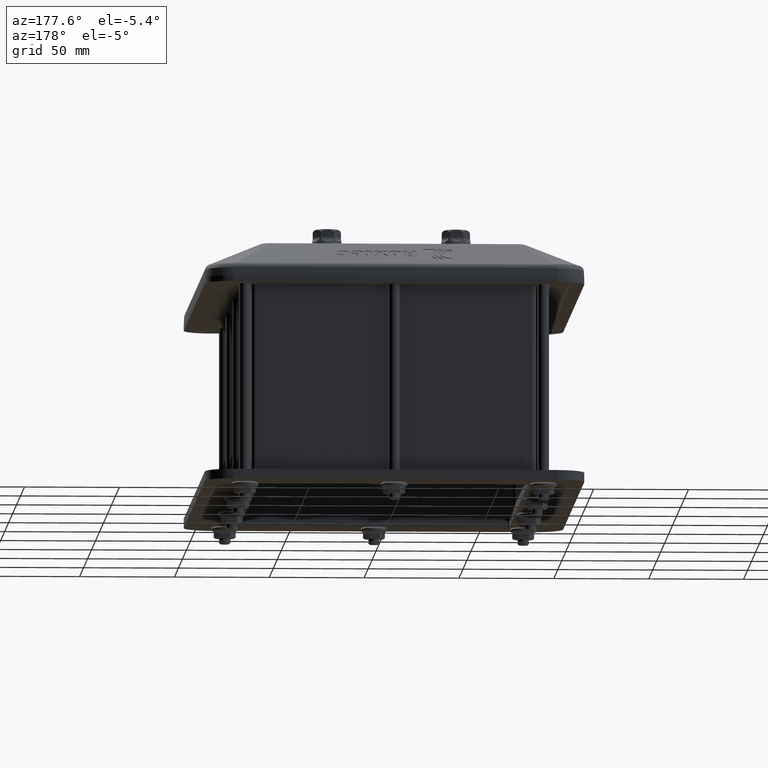
[diagram: clean part render]
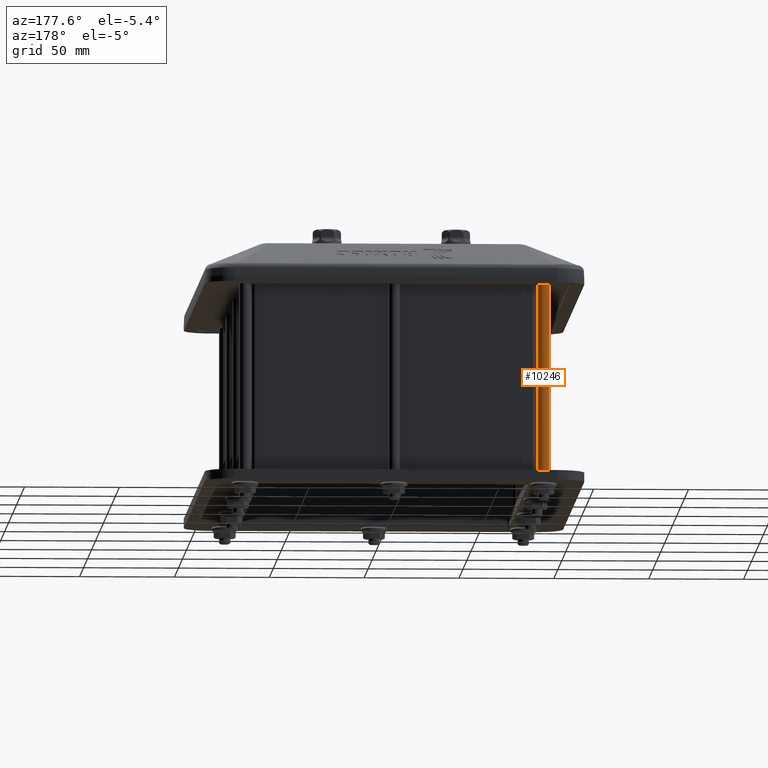
[diagram: same view with one face highlighted and labeled with its STEP entity id]
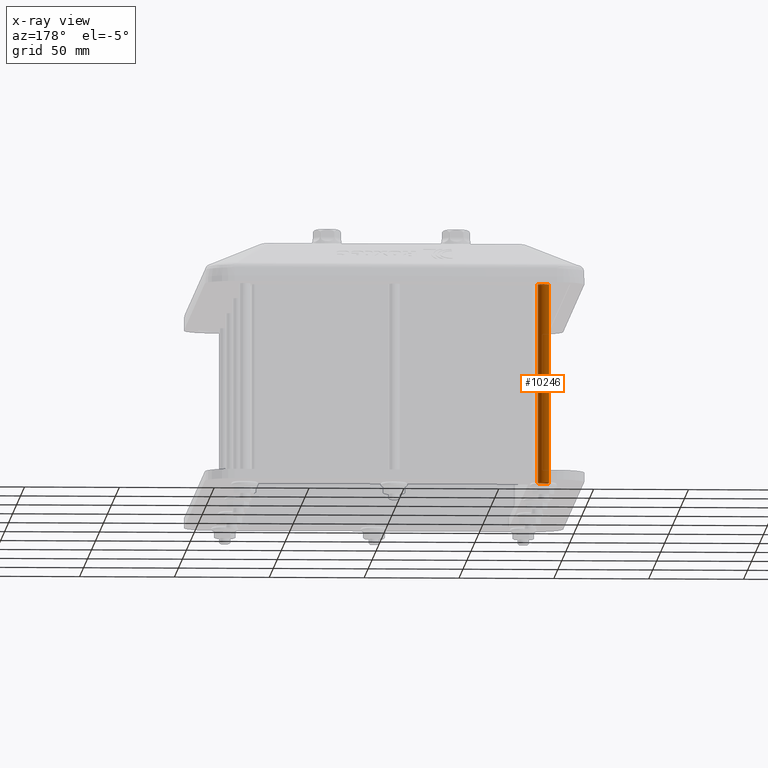
[diagram: x-ray of the same camera — body ghosted, the highlighted face saturated]
A machine part, auxiliary view. The second image highlights one B-rep face of the part: STEP entity #10246.
The next image is the same camera in x-ray: the body ghosted, the highlighted face saturated — about 0% of this face is hidden behind the body in this view.
In plain terms, the highlighted cylindrical surface (bore or boss wall) has radius 3 mm, axis along (0, 0, -1).
Its self-contained STEP definition (entity closure, byte-faithful):
#314=B_SPLINE_CURVE_WITH_KNOTS('',3,(#15543,#15544,#15545,#15546,#15547,
#15548,#15549,#15550,#15551,#15552,#15553,#15554,#15555,#15556,#15557,#15558,
#15559,#15560,#15561,#15562,#15563),.UNSPECIFIED.,.F.,.F.,(4,2,2,2,2,2,
2,3,2,4),(-0.746895680633733,-0.675764421062164,-0.563047233287686,-0.450330045513208,
-0.33779462232535,-0.225259199137491,-0.112629599568746,0.,0.112944327910266,
0.145091913011363),.UNSPECIFIED.);
#1107=FACE_OUTER_BOUND('',#1736,.T.);
#1736=EDGE_LOOP('',(#7165,#7166,#7167,#7168,#7169,#7170));
#2308=LINE('',#15681,#2980);
#2980=VECTOR('',#12424,3.);
#3719=CIRCLE('',#11007,3.);
#3720=CIRCLE('',#11008,3.);
#3732=CIRCLE('',#11036,3.);
#4241=VERTEX_POINT('',#15541);
#4242=VERTEX_POINT('',#15542);
#4244=VERTEX_POINT('',#15568);
#4266=VERTEX_POINT('',#15680);
#5316=EDGE_CURVE('',#4241,#4242,#314,.T.);
#5319=EDGE_CURVE('',#4242,#4244,#3719,.T.);
#5320=EDGE_CURVE('',#4244,#4241,#3720,.T.);
#5357=EDGE_CURVE('',#4244,#4266,#2308,.T.);
#5358=EDGE_CURVE('',#4266,#4266,#3732,.T.);
#7165=ORIENTED_EDGE('',*,*,#5316,.T.);
#7166=ORIENTED_EDGE('',*,*,#5319,.T.);
#7167=ORIENTED_EDGE('',*,*,#5357,.T.);
#7168=ORIENTED_EDGE('',*,*,#5358,.F.);
#7169=ORIENTED_EDGE('',*,*,#5357,.F.);
#7170=ORIENTED_EDGE('',*,*,#5320,.T.);
#9380=CYLINDRICAL_SURFACE('',#11035,3.);
#10246=ADVANCED_FACE('',(#1107),#9380,.T.);
#11007=AXIS2_PLACEMENT_3D('',#15569,#12359,#12360);
#11008=AXIS2_PLACEMENT_3D('',#15570,#12361,#12362);
#11035=AXIS2_PLACEMENT_3D('',#15679,#12422,#12423);
#11036=AXIS2_PLACEMENT_3D('',#15682,#12425,#12426);
#12359=DIRECTION('center_axis',(-3.85185988877449E-34,2.9580326909422E-34,
1.));
#12360=DIRECTION('ref_axis',(1.,4.90939225826135E-163,4.37804773852009E-18));
#12361=DIRECTION('center_axis',(-3.85185988877449E-34,2.9580326909422E-34,
1.));
#12362=DIRECTION('ref_axis',(1.,4.90939225826135E-163,4.37804773852009E-18));
#12422=DIRECTION('center_axis',(4.37804773852009E-18,1.00104154759155E-146,
-1.));
#12423=DIRECTION('ref_axis',(1.,4.90939225826135E-163,4.37804773852009E-18));
#12424=DIRECTION('',(-4.37804773852009E-18,-1.00104154759155E-146,1.));
#12425=DIRECTION('center_axis',(0.,0.,1.));
#12426=DIRECTION('ref_axis',(1.,4.90939225826135E-163,4.37804773852009E-18));
#15541=CARTESIAN_POINT('',(-81.6993380836706,126.449340560127,-124.2));
#15542=CARTESIAN_POINT('',(-75.7006619163295,126.449340560122,-124.2));
#15543=CARTESIAN_POINT('Ctrl Pts',(-81.6993380836706,126.449340560127,-124.2));
#15544=CARTESIAN_POINT('Ctrl Pts',(-81.6940853829005,126.199332006766,-124.200594588658));
#15545=CARTESIAN_POINT('Ctrl Pts',(-81.6569427975015,125.953154441156,-124.201180382787));
#15546=CARTESIAN_POINT('Ctrl Pts',(-81.4959775853942,125.361845241247,-124.202588079743));
#15547=CARTESIAN_POINT('Ctrl Pts',(-81.3184253460997,124.994759748807,-124.203462688488));
#15548=CARTESIAN_POINT('Ctrl Pts',(-80.8306458539375,124.363031274608,-124.204968777467));
#15549=CARTESIAN_POINT('Ctrl Pts',(-80.5204185936192,124.098388298473,-124.205600203507));
#15550=CARTESIAN_POINT('Ctrl Pts',(-79.8693989812632,123.724307516953,-124.206492986968));
#15551=CARTESIAN_POINT('Ctrl Pts',(-79.4851832433224,123.589642178596,-124.206814546341));
#15552=CARTESIAN_POINT('Ctrl Pts',(-78.6950201686344,123.486014343654,-124.207061992953));
#15553=CARTESIAN_POINT('Ctrl Pts',(-78.2890728315538,123.517051849578,-124.206987865639));
#15554=CARTESIAN_POINT('Ctrl Pts',(-77.563890534178,123.710535281771,-124.206525906856));
#15555=CARTESIAN_POINT('Ctrl Pts',(-77.1961654961481,123.886047019401,-124.20610688293));
#15556=CARTESIAN_POINT('Ctrl Pts',(-76.5623028391235,124.370098125233,-124.204951989933));
#15557=CARTESIAN_POINT('Ctrl Pts',(-76.296165214367,124.67863748602,-124.204216175117));
#15558=CARTESIAN_POINT('Ctrl Pts',(-76.1072910154552,125.003098769843,-124.203442980439));
#15559=CARTESIAN_POINT('Ctrl Pts',(-75.9178890328736,125.328466717297,-124.202667625173));
#15560=CARTESIAN_POINT('Ctrl Pts',(-75.7808452971774,125.713365622413,-124.201750978084));
#15561=CARTESIAN_POINT('Ctrl Pts',(-75.7118845043184,126.222328966403,-124.20053995899));
#15562=CARTESIAN_POINT('Ctrl Pts',(-75.7030430491578,126.336007705315,-124.200269536499));
#15563=CARTESIAN_POINT('Ctrl Pts',(-75.7006619163295,126.449340560122,-124.2));
#15568=CARTESIAN_POINT('',(-81.7,126.512356905968,-124.2));
#15569=CARTESIAN_POINT('Origin',(-78.7,126.512356905968,-124.2));
#15570=CARTESIAN_POINT('Origin',(-78.7,126.512356905968,-124.2));
#15679=CARTESIAN_POINT('Origin',(-78.7,126.512356905968,-43.2));
#15680=CARTESIAN_POINT('',(-81.7,126.512356905968,-19.2));
#15681=CARTESIAN_POINT('',(-81.7,126.512356905968,-43.2));
#15682=CARTESIAN_POINT('Origin',(-78.7,126.512356905968,-19.2));